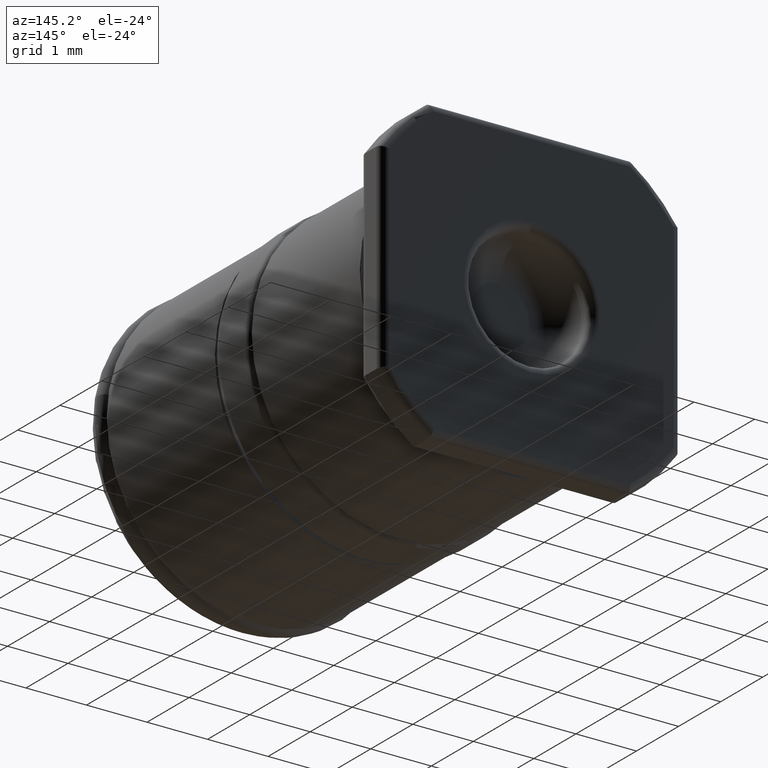
[diagram: clean part render]
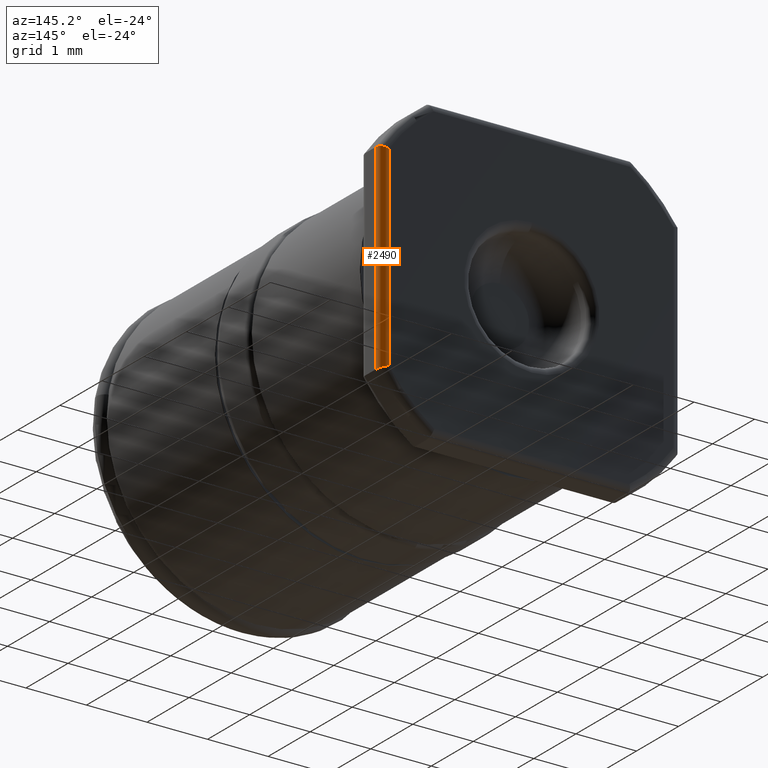
[diagram: same view with one face highlighted and labeled with its STEP entity id]
A machine part, auxiliary view. The second image highlights one B-rep face of the part: STEP entity #2490.
In plain terms, the highlighted cylindrical surface (edge-blend (fillet) strip) has radius 0.127 mm, axis along (0, 0, -1).
Its self-contained STEP definition (entity closure, byte-faithful):
#37 = DIRECTION ( 'NONE',  ( -1.000000000000000000, 0.0000000000000000000, 0.0000000000000000000 ) ) ;
#115 = LINE ( 'NONE', #2822, #5483 ) ;
#116 = CARTESIAN_POINT ( 'NONE',  ( 0.09718855445845860086, 0.07809871100797882715, 0.06478989984774459476 ) ) ;
#146 = CARTESIAN_POINT ( 'NONE',  ( 0.09292148555135588961, 0.08049999999999932210, 0.06348475780195231288 ) ) ;
#164 = CARTESIAN_POINT ( 'NONE',  ( 0.09613704710391628161, 0.07933439973062660078, -0.06447082076990319488 ) ) ;
#188 = CARTESIAN_POINT ( 'NONE',  ( 0.09299673058480427412, 0.08049872585517087176, -0.06350800561885683315 ) ) ;
#225 = CARTESIAN_POINT ( 'NONE',  ( 0.09379956878272527332, 0.08043184440926624823, -0.06375561274636547260 ) ) ;
#448 = CARTESIAN_POINT ( 'NONE',  ( 0.09788385975225946667, 0.07549999999999931766, 0.06500000000000000222 ) ) ;
#584 = CARTESIAN_POINT ( 'NONE',  ( 0.09788385975225946667, 0.07549999999999931766, 0.06500000000000000222 ) ) ;
#661 = CARTESIAN_POINT ( 'NONE',  ( 0.09569489444762245556, 0.07963498294330943750, -0.06433600779636239331 ) ) ;
#701 = CARTESIAN_POINT ( 'NONE',  ( 0.09744754547461424721, 0.07761264754191067594, -0.06486821347069922361 ) ) ;
#761 = CARTESIAN_POINT ( 'NONE',  ( 0.09379956878272527332, 0.08043184440926624823, 0.06375561274636551423 ) ) ;
#771 = CARTESIAN_POINT ( 'NONE',  ( 0.09762024526806416247, 0.07710207747804947997, -0.06492039589076285810 ) ) ;
#787 = VERTEX_POINT ( 'NONE', #7184 ) ;
#800 = CARTESIAN_POINT ( 'NONE',  ( 0.09339726809601765767, 0.08048968174999968084, 0.06363172230493253922 ) ) ;
#1191 = CARTESIAN_POINT ( 'NONE',  ( 0.09339726809601765767, 0.08048968174999968084, -0.06363172230493252535 ) ) ;
#1202 = EDGE_CURVE ( 'NONE', #6669, #3273, #115, .T. ) ;
#1282 = CARTESIAN_POINT ( 'NONE',  ( 0.09471878038167837188, 0.08018355884377452447, 0.06403790535059238065 ) ) ;
#1315 = CARTESIAN_POINT ( 'NONE',  ( 0.09686652922524287279, 0.07852296937942844501, 0.06469225458590444067 ) ) ;
#1435 = CARTESIAN_POINT ( 'NONE',  ( 0.09788385975225948055, 0.07549999999999931766, -0.06500000000000000222 ) ) ;
#1912 = ORIENTED_EDGE ( 'NONE', *, *, #7151, .F. ) ;
#2250 = DIRECTION ( 'NONE',  ( 0.0000000000000000000, -0.0000000000000000000, -1.000000000000000000 ) ) ;
#2361 = CARTESIAN_POINT ( 'NONE',  ( 0.09569489444762242780, 0.07963498294330943750, 0.06433600779636239331 ) ) ;
#2445 = VECTOR ( 'NONE', #6750, 39.37007874015748143 ) ;
#2479 = ORIENTED_EDGE ( 'NONE', *, *, #1202, .F. ) ;
#2490 = ADVANCED_FACE ( 'NONE', ( #4298 ), #3756, .T. ) ;
#2496 = CARTESIAN_POINT ( 'NONE',  ( 0.09299673058480427412, 0.08049872585517087176, 0.06350800561885687479 ) ) ;
#2546 = EDGE_CURVE ( 'NONE', #3273, #5377, #2686, .T. ) ;
#2686 = B_SPLINE_CURVE_WITH_KNOTS ( 'NONE', 3,
 ( #584, #5794, #6817, #5177, #5758, #116, #1315, #4591, #5823, #2361, #4693, #1282, #6233, #761, #800, #2496, #6891, #146, #4729 ),
 .UNSPECIFIED., .F., .F.,
 ( 4, 3, 3, 3, 3, 3, 4 ),
 ( 0.0000000000000000000, 4.128950793226465244E-05, 8.253124551219911216E-05, 0.0001245148533579843949, 0.0001682216417405995451, 0.0001999590837689460316, 0.0002029598931574348719 ),
 .UNSPECIFIED. ) ;
#2802 = CARTESIAN_POINT ( 'NONE',  ( 0.09292148555135587573, 0.08049999999999932210, -0.06348475780195228513 ) ) ;
#2822 = CARTESIAN_POINT ( 'NONE',  ( 0.09788385975225946667, 0.07549999999999931766, 0.06500000000000000222 ) ) ;
#2869 = CARTESIAN_POINT ( 'NONE',  ( 0.09288385975225946223, 0.08049999999999932210, 0.06347313287937345061 ) ) ;
#2941 = CARTESIAN_POINT ( 'NONE',  ( 0.09295911263918532619, 0.08049957526539332220, -0.06349638631370148334 ) ) ;
#3012 = CARTESIAN_POINT ( 'NONE',  ( 0.09653863069639989636, 0.07895496563779137722, -0.06459282840930906378 ) ) ;
#3117 = ORIENTED_EDGE ( 'NONE', *, *, #2546, .F. ) ;
#3273 = VERTEX_POINT ( 'NONE', #448 ) ;
#3424 = CARTESIAN_POINT ( 'NONE',  ( 0.09788385975225948055, 0.07549999999999931766, -0.06500000000000000222 ) ) ;
#3459 = CARTESIAN_POINT ( 'NONE',  ( 0.09523475625187771687, 0.07994779304449566026, -0.06419571100627183280 ) ) ;
#3572 = CARTESIAN_POINT ( 'NONE',  ( 0.09718855445845860086, 0.07809871100797882715, -0.06478989984774459476 ) ) ;
#3756 = CYLINDRICAL_SURFACE ( 'NONE', #3986, 0.004999999999999997502 ) ;
#3795 = CARTESIAN_POINT ( 'NONE',  ( 0.09288385975225946223, 0.07549999999999931766, -0.06500000000000000222 ) ) ;
#3801 = ORIENTED_EDGE ( 'NONE', *, *, #6504, .F. ) ;
#3986 = AXIS2_PLACEMENT_3D ( 'NONE', #3795, #2250, #37 ) ;
#4018 = LINE ( 'NONE', #4522, #2445 ) ;
#4298 = FACE_OUTER_BOUND ( 'NONE', #5340, .T. ) ;
#4522 = CARTESIAN_POINT ( 'NONE',  ( 0.09288385975225946223, 0.08049999999999932210, -0.06500000000000000222 ) ) ;
#4591 = CARTESIAN_POINT ( 'NONE',  ( 0.09653863069639989636, 0.07895496563779137722, 0.06459282840930906378 ) ) ;
#4693 = CARTESIAN_POINT ( 'NONE',  ( 0.09523475625187770299, 0.07994779304449566026, 0.06419571100627183280 ) ) ;
#4729 = CARTESIAN_POINT ( 'NONE',  ( 0.09288385975225946223, 0.08049999999999932210, 0.06347313287937345061 ) ) ;
#5156 = CARTESIAN_POINT ( 'NONE',  ( 0.09471878038167837188, 0.08018355884377452447, -0.06403790535059238065 ) ) ;
#5177 = CARTESIAN_POINT ( 'NONE',  ( 0.09762024526806416247, 0.07710207747804947997, 0.06492039589076285810 ) ) ;
#5340 = EDGE_LOOP ( 'NONE', ( #1912, #3801, #3117, #2479 ) ) ;
#5377 = VERTEX_POINT ( 'NONE', #2869 ) ;
#5483 = VECTOR ( 'NONE', #5581, 39.37007874015748143 ) ;
#5581 = DIRECTION ( 'NONE',  ( 0.0000000000000000000, -0.0000000000000000000, 1.000000000000000000 ) ) ;
#5668 = CARTESIAN_POINT ( 'NONE',  ( 0.09788385975225948055, 0.07604185705947785756, -0.06500000000000000222 ) ) ;
#5738 = CARTESIAN_POINT ( 'NONE',  ( 0.09779305665019105698, 0.07659117751316879552, -0.06497261202810605818 ) ) ;
#5758 = CARTESIAN_POINT ( 'NONE',  ( 0.09744754547461424721, 0.07761264754191067594, 0.06486821347069922361 ) ) ;
#5794 = CARTESIAN_POINT ( 'NONE',  ( 0.09788385975225946667, 0.07604185705947785756, 0.06500000000000000222 ) ) ;
#5803 = CARTESIAN_POINT ( 'NONE',  ( 0.09418767078645198798, 0.08032701530835684167, -0.06387480002105007382 ) ) ;
#5823 = CARTESIAN_POINT ( 'NONE',  ( 0.09613704710391626773, 0.07933439973062660078, 0.06447082076990319488 ) ) ;
#6049 = B_SPLINE_CURVE_WITH_KNOTS ( 'NONE', 3,
 ( #6061, #2802, #2941, #188, #1191, #225, #5803, #5156, #3459, #661, #164, #3012, #6350, #3572, #701, #771, #5738, #5668, #3424 ),
 .UNSPECIFIED., .F., .F.,
 ( 4, 3, 3, 3, 3, 3, 4 ),
 ( -3.000809388489218588E-06, 0.0000000000000000000, 3.195115268298570670E-05, 7.595224979877146466E-05, 0.0001182185629838467959, 0.0001597380103656231625, 0.0002013055497713143408 ),
 .UNSPECIFIED. ) ;
#6061 = CARTESIAN_POINT ( 'NONE',  ( 0.09288385975225946223, 0.08049999999999932210, -0.06347313287937345061 ) ) ;
#6233 = CARTESIAN_POINT ( 'NONE',  ( 0.09418767078645198798, 0.08032701530835684167, 0.06387480002105010157 ) ) ;
#6350 = CARTESIAN_POINT ( 'NONE',  ( 0.09686652922524287279, 0.07852296937942844501, -0.06469225458590444067 ) ) ;
#6504 = EDGE_CURVE ( 'NONE', #5377, #787, #4018, .T. ) ;
#6669 = VERTEX_POINT ( 'NONE', #1435 ) ;
#6750 = DIRECTION ( 'NONE',  ( -0.0000000000000000000, -0.0000000000000000000, -1.000000000000000000 ) ) ;
#6817 = CARTESIAN_POINT ( 'NONE',  ( 0.09779305665019105698, 0.07659117751316879552, 0.06497261202810605818 ) ) ;
#6891 = CARTESIAN_POINT ( 'NONE',  ( 0.09295911263918532619, 0.08049957526539332220, 0.06349638631370153885 ) ) ;
#7151 = EDGE_CURVE ( 'NONE', #787, #6669, #6049, .T. ) ;
#7184 = CARTESIAN_POINT ( 'NONE',  ( 0.09288385975225946223, 0.08049999999999932210, -0.06347313287937345061 ) ) ;